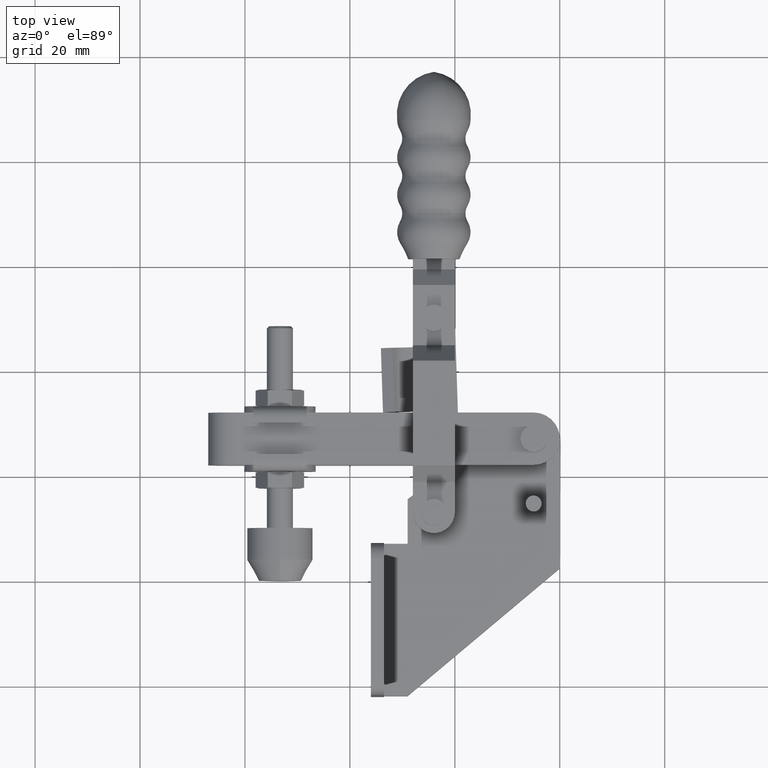
[diagram: clean part render]
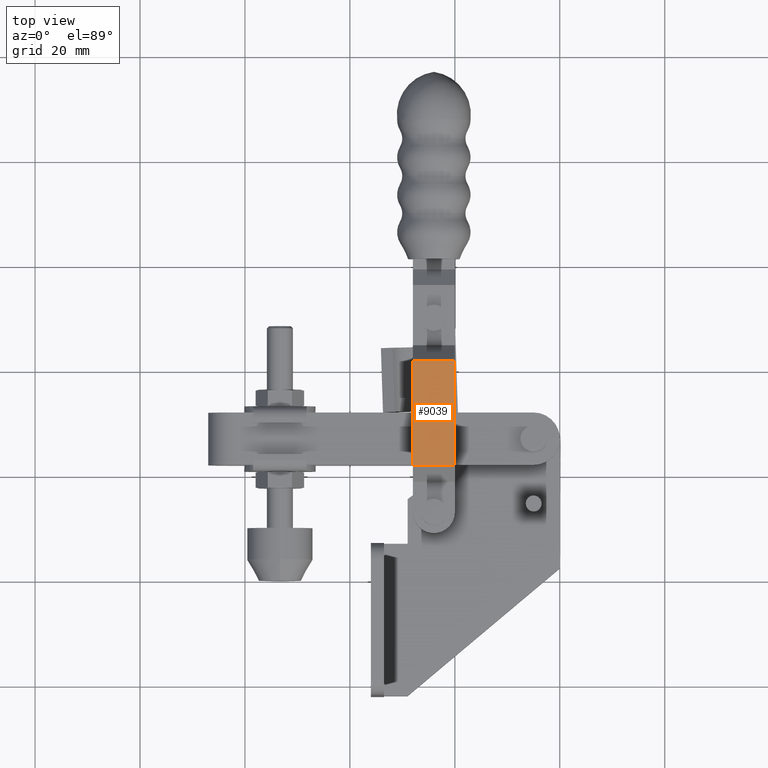
[diagram: same view with one face highlighted and labeled with its STEP entity id]
A machine part, top view. The second image highlights one B-rep face of the part: STEP entity #9039.
In plain terms, the highlighted planar face has unit normal (0, -0, -1).
Its self-contained STEP definition (entity closure, byte-faithful):
#210 = VERTEX_POINT ( 'NONE', #3095 ) ;
#272 = EDGE_CURVE ( 'NONE', #7817, #210, #2271, .T. ) ;
#565 = CARTESIAN_POINT ( 'NONE',  ( -27.99999999999992200, 21.79999999999994400, 9.499999999999976900 ) ) ;
#568 = VECTOR ( 'NONE', #2372, 1000.000000000000000 ) ;
#1046 = VECTOR ( 'NONE', #7590, 1000.000000000000000 ) ;
#1184 = CARTESIAN_POINT ( 'NONE',  ( -19.99999999999990800, 41.80000000000000400, 9.499999999999960900 ) ) ;
#2271 = LINE ( 'NONE', #6329, #568 ) ;
#2372 = DIRECTION ( 'NONE',  ( -6.139581518573649800E-031, -1.000000000000000000, 1.526760972485686300E-015 ) ) ;
#2466 = ORIENTED_EDGE ( 'NONE', *, *, #272, .F. ) ;
#2477 = EDGE_LOOP ( 'NONE', ( #7258, #7860, #2466, #5455 ) ) ;
#2561 = LINE ( 'NONE', #5558, #4426 ) ;
#3095 = CARTESIAN_POINT ( 'NONE',  ( -19.99999999999992200, 21.79999999999993000, 9.499999999999984000 ) ) ;
#3152 = EDGE_CURVE ( 'NONE', #210, #7122, #2561, .T. ) ;
#3535 = DIRECTION ( 'NONE',  ( 1.562756255276106900E-015, -1.526760972485687100E-015, -1.000000000000000000 ) ) ;
#4426 = VECTOR ( 'NONE', #7132, 1000.000000000000000 ) ;
#4509 = DIRECTION ( 'NONE',  ( -6.139581518573649800E-031, -1.000000000000000000, 1.526760972485686300E-015 ) ) ;
#4658 = EDGE_CURVE ( 'NONE', #7728, #7122, #5242, .T. ) ;
#5222 = AXIS2_PLACEMENT_3D ( 'NONE', #9102, #3535, #9135 ) ;
#5242 = LINE ( 'NONE', #565, #7119 ) ;
#5246 = LINE ( 'NONE', #6776, #1046 ) ;
#5455 = ORIENTED_EDGE ( 'NONE', *, *, #5682, .T. ) ;
#5558 = CARTESIAN_POINT ( 'NONE',  ( -19.99999999999992200, 21.79999999999993000, 9.499999999999984000 ) ) ;
#5682 = EDGE_CURVE ( 'NONE', #7817, #7728, #5246, .T. ) ;
#6329 = CARTESIAN_POINT ( 'NONE',  ( -19.99999999999992200, 21.79999999999993000, 9.499999999999984000 ) ) ;
#6701 = PLANE ( 'NONE',  #5222 ) ;
#6772 = FACE_OUTER_BOUND ( 'NONE', #2477, .T. ) ;
#6776 = CARTESIAN_POINT ( 'NONE',  ( -19.99999999999990800, 41.80000000000000400, 9.499999999999960900 ) ) ;
#7119 = VECTOR ( 'NONE', #4509, 1000.000000000000000 ) ;
#7122 = VERTEX_POINT ( 'NONE', #7219 ) ;
#7132 = DIRECTION ( 'NONE',  ( -1.000000000000000000, -6.139581518573801300E-031, -1.562756255276106900E-015 ) ) ;
#7219 = CARTESIAN_POINT ( 'NONE',  ( -27.99999999999992200, 21.79999999999994400, 9.499999999999976900 ) ) ;
#7258 = ORIENTED_EDGE ( 'NONE', *, *, #4658, .T. ) ;
#7590 = DIRECTION ( 'NONE',  ( -1.000000000000000000, -6.139581518573801300E-031, -1.562756255276106900E-015 ) ) ;
#7728 = VERTEX_POINT ( 'NONE', #9069 ) ;
#7817 = VERTEX_POINT ( 'NONE', #1184 ) ;
#7860 = ORIENTED_EDGE ( 'NONE', *, *, #3152, .F. ) ;
#9039 = ADVANCED_FACE ( 'NONE', ( #6772 ), #6701, .F. ) ;
#9069 = CARTESIAN_POINT ( 'NONE',  ( -27.99999999999991100, 41.80000000000001100, 9.499999999999950300 ) ) ;
#9102 = CARTESIAN_POINT ( 'NONE',  ( -19.99999999999992200, 21.79999999999993000, 9.499999999999984000 ) ) ;
#9135 = DIRECTION ( 'NONE',  ( -1.000000000000000000, -6.139581518573800400E-031, -1.562756255276106900E-015 ) ) ;